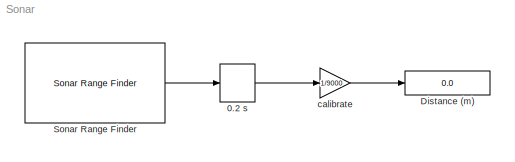
MODEL Sonar
KIND model
BLOCK [ZeroOrderHold] 0.2 s
  SID = 1
  SampleTime = 0.2
BLOCK [Display] Distance (m)
  Decimation = 1
  Ports = [1]
  SID = 2
BLOCK [Reference] Sonar Range Finder  REF=mc9s12tool/Sonar Range Finder
  FunctionWithSeparateData = off
  Ports = [0, 1]
  RTWMemSecDataConstants = Inherit from model
  RTWMemSecDataInternal = Inherit from model
  RTWMemSecDataParameters = Inherit from model
  RTWMemSecFuncExecute = Inherit from model
  RTWMemSecFuncInitTerm = Inherit from model
  SID = 3
  ShowPortLabels = none
  SourceBlock = mc9s12tool/Sonar Range Finder
  SourceType = Unknown
  SystemSampleTime = -1
  Tag = mcTarget_sonar
  in_pin = 1
  in_port = Port T
  out_pin = 0
  out_port = Port T
  sampletime = 0.02
BLOCK [Gain] calibrate
  Gain = 1/9000
  SID = 4
LINE 0.2 s:1 -> calibrate:1
LINE Sonar Range Finder:1 -> 0.2 s:1
LINE calibrate:1 -> Distance (m):1
